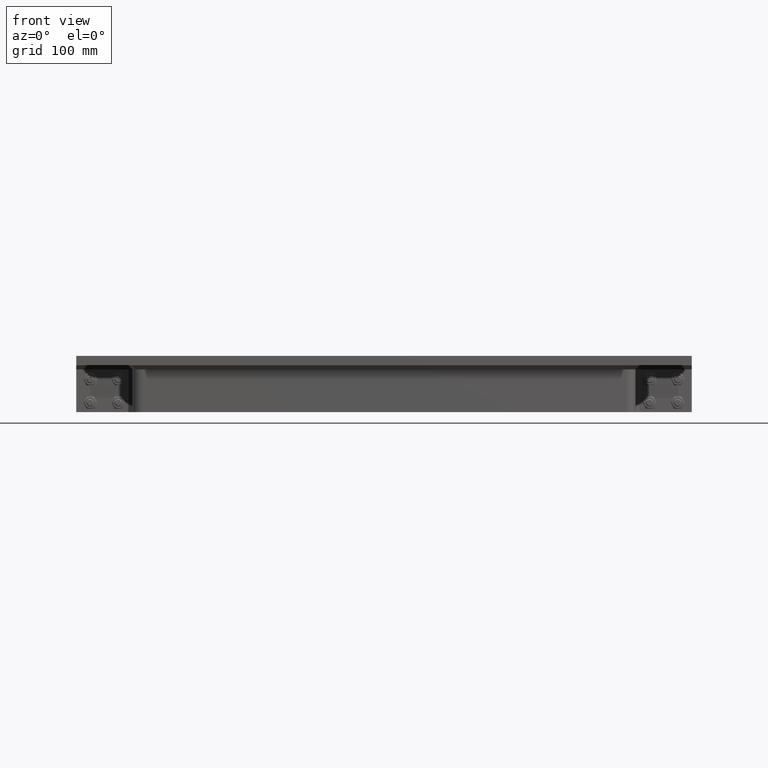
[diagram: clean part render]
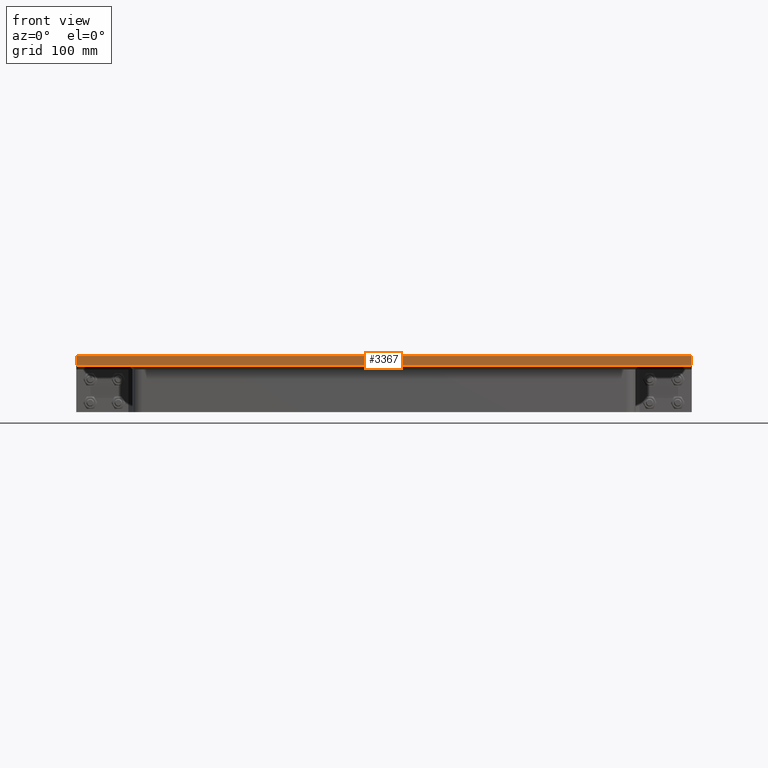
[diagram: same view with one face highlighted and labeled with its STEP entity id]
A machine part, front view. The second image highlights one B-rep face of the part: STEP entity #3367.
In plain terms, the highlighted planar face has unit normal (0, -1, 0).
Its self-contained STEP definition (entity closure, byte-faithful):
#626=FACE_OUTER_BOUND('',#855,.T.);
#855=EDGE_LOOP('',(#2639,#2640,#2641,#2642));
#1081=LINE('',#5184,#1342);
#1105=LINE('',#5303,#1366);
#1110=LINE('',#5313,#1371);
#1132=LINE('',#5358,#1393);
#1342=VECTOR('',#4161,10.);
#1366=VECTOR('',#4289,10.);
#1371=VECTOR('',#4296,10.);
#1393=VECTOR('',#4326,10.);
#1599=VERTEX_POINT('',#5181);
#1600=VERTEX_POINT('',#5183);
#1643=VERTEX_POINT('',#5302);
#1646=VERTEX_POINT('',#5310);
#1904=EDGE_CURVE('',#1599,#1600,#1081,.T.);
#1961=EDGE_CURVE('',#1643,#1600,#1105,.T.);
#1966=EDGE_CURVE('',#1646,#1599,#1110,.T.);
#1990=EDGE_CURVE('',#1643,#1646,#1132,.T.);
#2639=ORIENTED_EDGE('',*,*,#1990,.F.);
#2640=ORIENTED_EDGE('',*,*,#1961,.T.);
#2641=ORIENTED_EDGE('',*,*,#1904,.F.);
#2642=ORIENTED_EDGE('',*,*,#1966,.F.);
#3242=PLANE('',#3822);
#3367=ADVANCED_FACE('',(#626),#3242,.T.);
#3822=AXIS2_PLACEMENT_3D('',#5463,#4440,#4441);
#4161=DIRECTION('',(-1.,0.,0.));
#4289=DIRECTION('',(0.,0.,-1.));
#4296=DIRECTION('',(0.,0.,-1.));
#4326=DIRECTION('',(1.,0.,0.));
#4440=DIRECTION('center_axis',(0.,-1.,0.));
#4441=DIRECTION('ref_axis',(-1.,0.,0.));
#5181=CARTESIAN_POINT('',(329.,-209.,-10.));
#5183=CARTESIAN_POINT('',(-329.,-209.,-10.));
#5184=CARTESIAN_POINT('',(-329.,-209.,-10.));
#5302=CARTESIAN_POINT('',(-329.,-209.,0.));
#5303=CARTESIAN_POINT('',(-329.,-209.,0.));
#5310=CARTESIAN_POINT('',(329.,-209.,0.));
#5313=CARTESIAN_POINT('',(329.,-209.,0.));
#5358=CARTESIAN_POINT('',(-329.,-209.,0.));
#5463=CARTESIAN_POINT('Origin',(329.,-209.,0.));